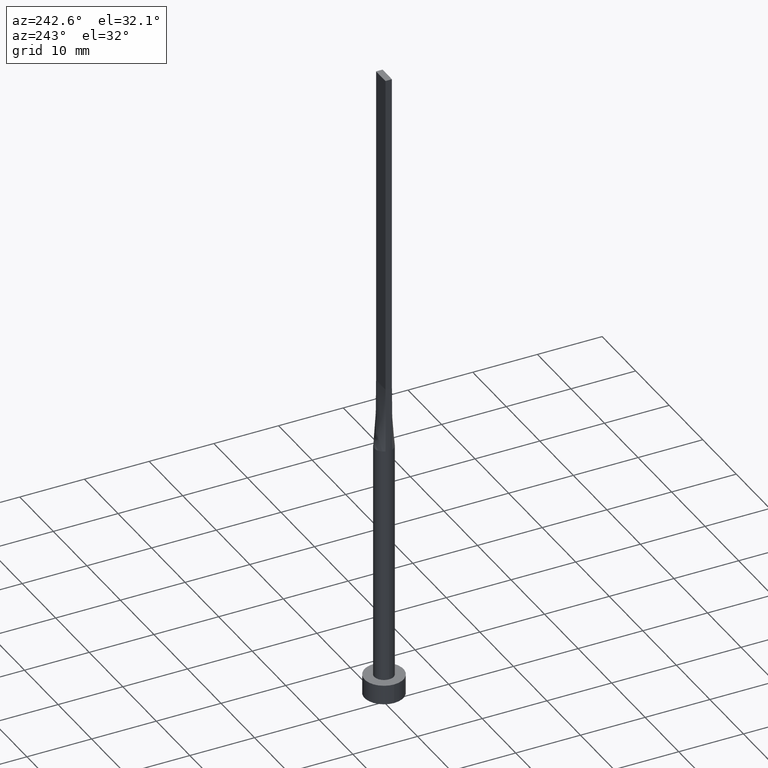
[diagram: clean part render]
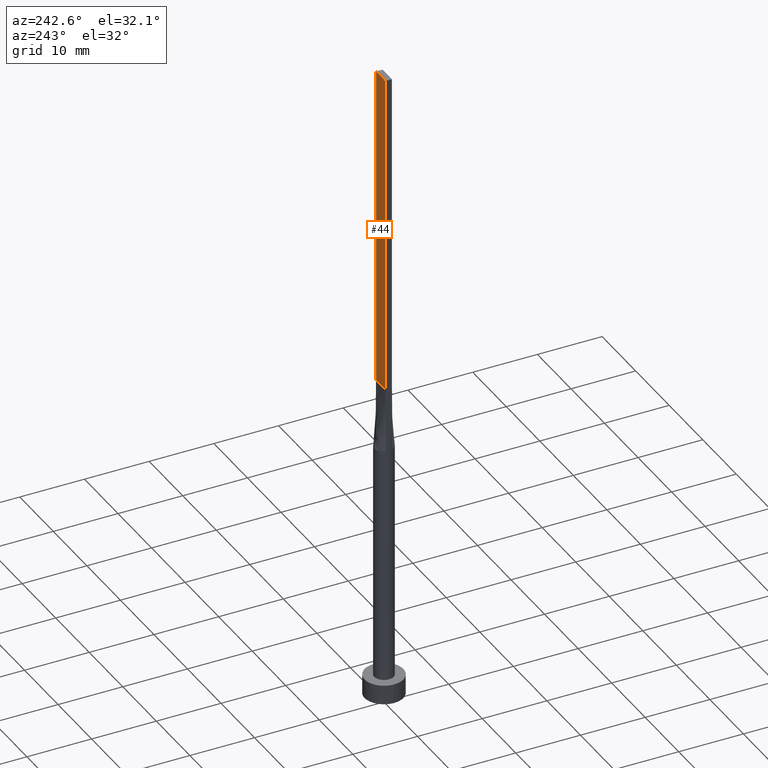
[diagram: same view with one face highlighted and labeled with its STEP entity id]
A machine part, auxiliary view. The second image highlights one B-rep face of the part: STEP entity #44.
In plain terms, the highlighted planar face has unit normal (0, -1, 0).
Its self-contained STEP definition (entity closure, byte-faithful):
#6 = CARTESIAN_POINT ( 'NONE',  ( 1.399999999999999689, 0.5000000000000002220, 100.0000000000000000 ) ) ;
#11 = EDGE_CURVE ( 'NONE', #344, #238, #507, .T. ) ;
#13 = ORIENTED_EDGE ( 'NONE', *, *, #227, .T. ) ;
#19 = ORIENTED_EDGE ( 'NONE', *, *, #334, .F. ) ;
#44 = ADVANCED_FACE ( 'NONE', ( #47 ), #416, .F. ) ;
#47 = FACE_OUTER_BOUND ( 'NONE', #248, .T. ) ;
#54 = CARTESIAN_POINT ( 'NONE',  ( -1.399999999999999689, 0.5000000000000002220, 100.0000000000000000 ) ) ;
#64 = EDGE_CURVE ( 'NONE', #380, #238, #538, .T. ) ;
#119 = LINE ( 'NONE', #262, #569 ) ;
#136 = CARTESIAN_POINT ( 'NONE',  ( -1.399999999999999689, 0.5000000000000002220, 100.0000000000000000 ) ) ;
#137 = CARTESIAN_POINT ( 'NONE',  ( 1.399999999999999689, 0.5000000000000002220, 50.00000000000000000 ) ) ;
#170 = AXIS2_PLACEMENT_3D ( 'NONE', #6, #462, #188 ) ;
#188 = DIRECTION ( 'NONE',  ( 0.000000000000000000, -0.000000000000000000, -1.000000000000000000 ) ) ;
#227 = EDGE_CURVE ( 'NONE', #468, #344, #119, .T. ) ;
#237 = CARTESIAN_POINT ( 'NONE',  ( -1.399999999999999689, 0.5000000000000002220, 50.00000000000000000 ) ) ;
#238 = VERTEX_POINT ( 'NONE', #258 ) ;
#248 = EDGE_LOOP ( 'NONE', ( #506, #536, #19, #13 ) ) ;
#258 = CARTESIAN_POINT ( 'NONE',  ( -1.399999999999999689, 0.5000000000000002220, 50.00000000000000000 ) ) ;
#262 = CARTESIAN_POINT ( 'NONE',  ( 1.399999999999999689, 0.5000000000000002220, 100.0000000000000000 ) ) ;
#281 = CARTESIAN_POINT ( 'NONE',  ( 1.399999999999999689, 0.5000000000000002220, 100.0000000000000000 ) ) ;
#334 = EDGE_CURVE ( 'NONE', #468, #380, #482, .T. ) ;
#344 = VERTEX_POINT ( 'NONE', #137 ) ;
#350 = DIRECTION ( 'NONE',  ( -1.000000000000000000, 0.000000000000000000, 0.000000000000000000 ) ) ;
#380 = VERTEX_POINT ( 'NONE', #54 ) ;
#393 = CARTESIAN_POINT ( 'NONE',  ( 1.399999999999999689, 0.5000000000000002220, 100.0000000000000000 ) ) ;
#404 = VECTOR ( 'NONE', #457, 1000.000000000000000 ) ;
#406 = VECTOR ( 'NONE', #350, 1000.000000000000000 ) ;
#408 = DIRECTION ( 'NONE',  ( -0.000000000000000000, -0.000000000000000000, -1.000000000000000000 ) ) ;
#416 = PLANE ( 'NONE',  #170 ) ;
#457 = DIRECTION ( 'NONE',  ( -1.000000000000000000, -0.000000000000000000, -0.000000000000000000 ) ) ;
#462 = DIRECTION ( 'NONE',  ( 0.000000000000000000, -1.000000000000000000, 0.000000000000000000 ) ) ;
#468 = VERTEX_POINT ( 'NONE', #281 ) ;
#482 = LINE ( 'NONE', #393, #406 ) ;
#506 = ORIENTED_EDGE ( 'NONE', *, *, #11, .T. ) ;
#507 = LINE ( 'NONE', #237, #404 ) ;
#535 = DIRECTION ( 'NONE',  ( -0.000000000000000000, -0.000000000000000000, -1.000000000000000000 ) ) ;
#536 = ORIENTED_EDGE ( 'NONE', *, *, #64, .F. ) ;
#538 = LINE ( 'NONE', #136, #568 ) ;
#568 = VECTOR ( 'NONE', #535, 1000.000000000000000 ) ;
#569 = VECTOR ( 'NONE', #408, 1000.000000000000000 ) ;